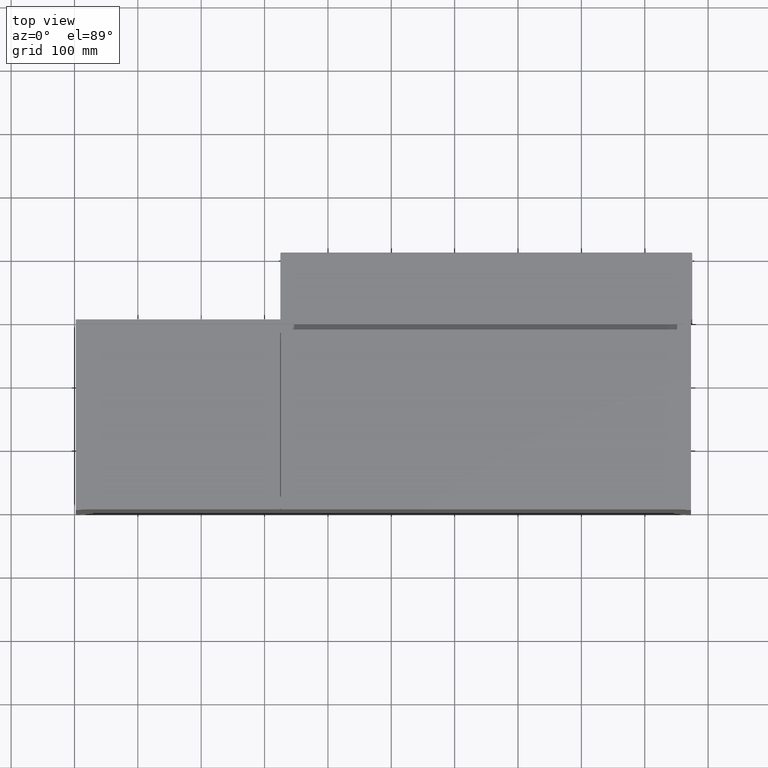
[diagram: clean part render]
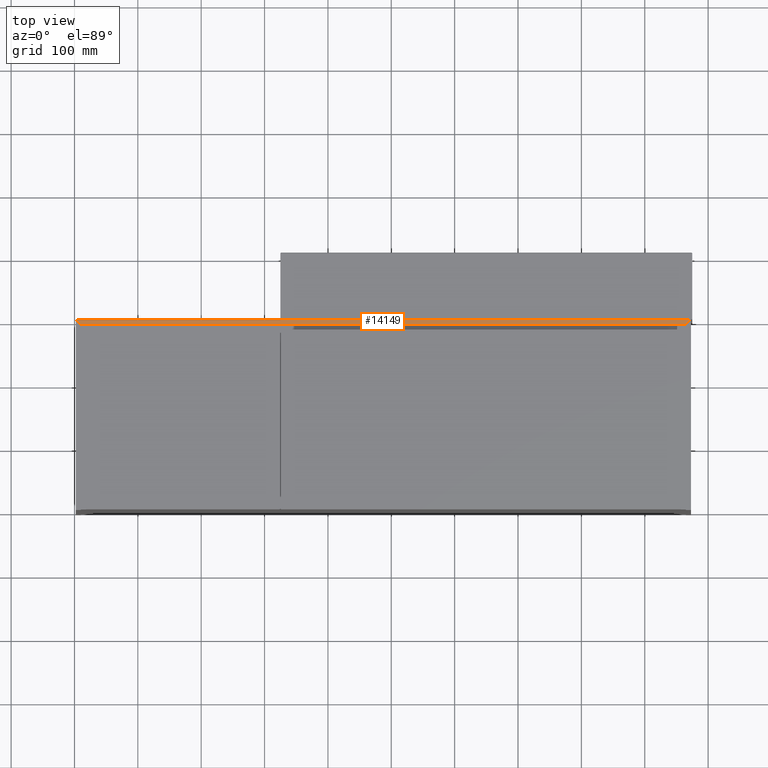
[diagram: same view with one face highlighted and labeled with its STEP entity id]
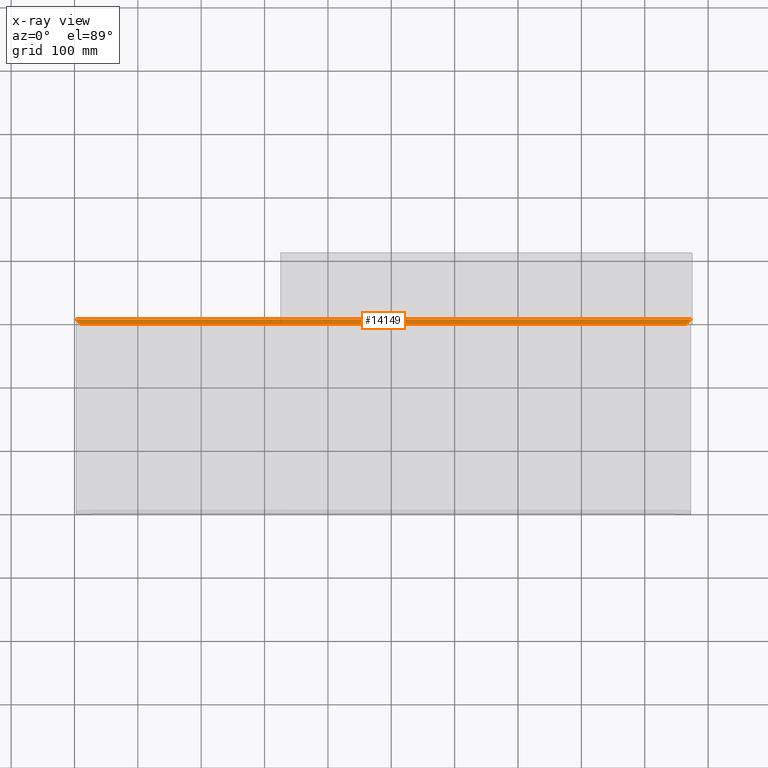
[diagram: x-ray of the same camera — body ghosted, the highlighted face saturated]
A machine part, top view. The second image highlights one B-rep face of the part: STEP entity #14149.
The next image is the same camera in x-ray: the body ghosted, the highlighted face saturated — about 0% of this face is hidden behind the body in this view.
In plain terms, the highlighted planar face has unit normal (0, 0, -1).
Its self-contained STEP definition (entity closure, byte-faithful):
#768 = DIRECTION ( 'NONE',  ( 0.0000000000000000000, 0.0000000000000000000, -1.000000000000000000 ) ) ;
#786 = CARTESIAN_POINT ( 'NONE',  ( 2.000000000000057288, 292.0000000000000000, 0.0000000000000000000 ) ) ;
#1969 = FACE_OUTER_BOUND ( 'NONE', #7072, .T. ) ;
#2374 = CARTESIAN_POINT ( 'NONE',  ( 2.000000000000057288, 300.0000000000000000, 0.0000000000000000000 ) ) ;
#2608 = CARTESIAN_POINT ( 'NONE',  ( 10.00000000000006395, 292.0000000000000000, 0.0000000000000000000 ) ) ;
#3726 = EDGE_CURVE ( 'NONE', #12051, #7557, #15259, .T. ) ;
#4260 = CARTESIAN_POINT ( 'NONE',  ( 2.000000000000057288, 300.0000000000000000, 0.0000000000000000000 ) ) ;
#5046 = VECTOR ( 'NONE', #7244, 1000.000000000000114 ) ;
#5079 = ORIENTED_EDGE ( 'NONE', *, *, #10615, .T. ) ;
#5266 = CARTESIAN_POINT ( 'NONE',  ( 2.000000000000057288, 300.0000000000000000, 0.0000000000000000000 ) ) ;
#5569 = VERTEX_POINT ( 'NONE', #2608 ) ;
#5652 = DIRECTION ( 'NONE',  ( -1.000000000000000000, 0.0000000000000000000, -0.0000000000000000000 ) ) ;
#5676 = DIRECTION ( 'NONE',  ( 1.000000000000000000, 0.0000000000000000000, 0.0000000000000000000 ) ) ;
#5845 = LINE ( 'NONE', #10725, #13153 ) ;
#6185 = VERTEX_POINT ( 'NONE', #6332 ) ;
#6332 = CARTESIAN_POINT ( 'NONE',  ( 965.0000000000002274, 292.0000000000000000, 0.0000000000000000000 ) ) ;
#6497 = ORIENTED_EDGE ( 'NONE', *, *, #7102, .T. ) ;
#6857 = PLANE ( 'NONE',  #9018 ) ;
#7072 = EDGE_LOOP ( 'NONE', ( #7173, #6497, #5079, #8232 ) ) ;
#7102 = EDGE_CURVE ( 'NONE', #7557, #5569, #13345, .T. ) ;
#7173 = ORIENTED_EDGE ( 'NONE', *, *, #3726, .T. ) ;
#7244 = DIRECTION ( 'NONE',  ( 0.7071067811865474617, -0.7071067811865474617, -0.0000000000000000000 ) ) ;
#7557 = VERTEX_POINT ( 'NONE', #5266 ) ;
#7704 = VECTOR ( 'NONE', #5676, 1000.000000000000000 ) ;
#8232 = ORIENTED_EDGE ( 'NONE', *, *, #15826, .T. ) ;
#9018 = AXIS2_PLACEMENT_3D ( 'NONE', #11745, #768, #5652 ) ;
#9157 = DIRECTION ( 'NONE',  ( -1.000000000000000000, -0.0000000000000000000, -0.0000000000000000000 ) ) ;
#10615 = EDGE_CURVE ( 'NONE', #5569, #6185, #11760, .T. ) ;
#10725 = CARTESIAN_POINT ( 'NONE',  ( 965.0000000000002274, 292.0000000000000000, 0.0000000000000000000 ) ) ;
#11745 = CARTESIAN_POINT ( 'NONE',  ( 0.0000000000000000000, 0.0000000000000000000, 0.0000000000000000000 ) ) ;
#11760 = LINE ( 'NONE', #786, #7704 ) ;
#12051 = VERTEX_POINT ( 'NONE', #12847 ) ;
#12847 = CARTESIAN_POINT ( 'NONE',  ( 973.0000000000000000, 300.0000000000000000, 0.0000000000000000000 ) ) ;
#13153 = VECTOR ( 'NONE', #15627, 1000.000000000000000 ) ;
#13345 = LINE ( 'NONE', #2374, #5046 ) ;
#14149 = ADVANCED_FACE ( 'NONE', ( #1969 ), #6857, .F. ) ;
#15114 = VECTOR ( 'NONE', #9157, 1000.000000000000000 ) ;
#15259 = LINE ( 'NONE', #4260, #15114 ) ;
#15627 = DIRECTION ( 'NONE',  ( 0.7071067811865426878, 0.7071067811865524577, -0.0000000000000000000 ) ) ;
#15826 = EDGE_CURVE ( 'NONE', #6185, #12051, #5845, .T. ) ;